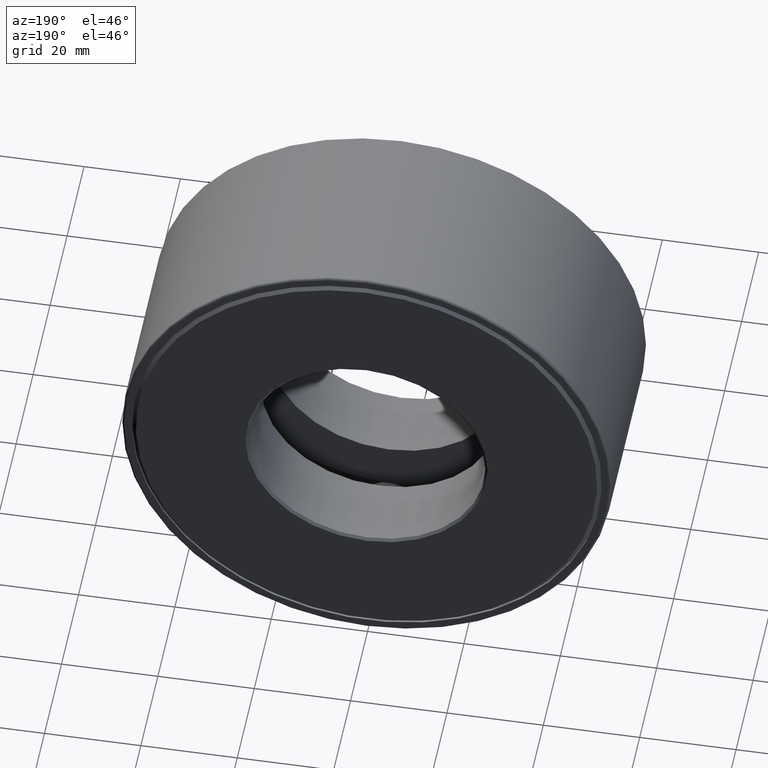
[diagram: clean part render]
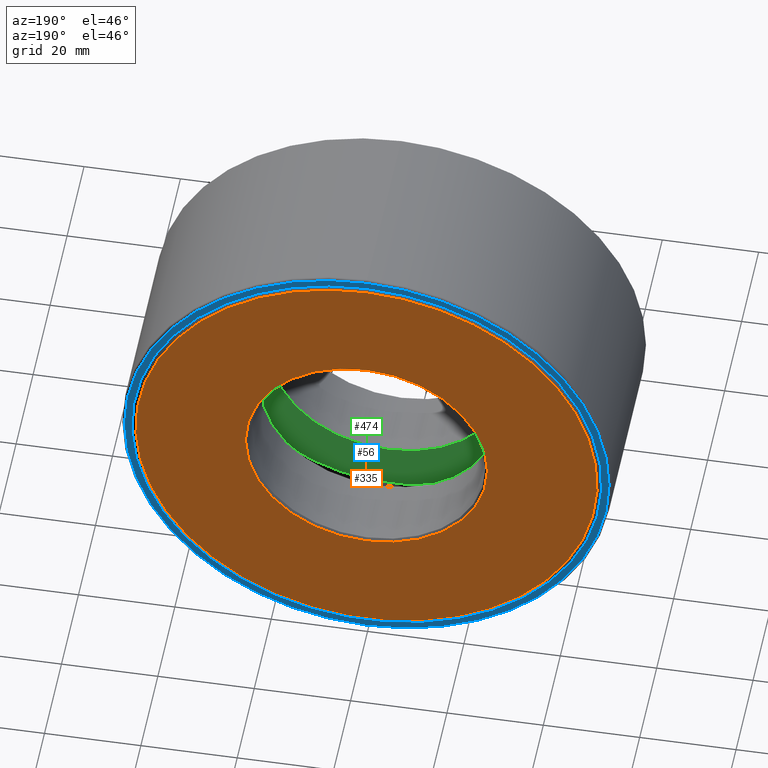
[diagram: same view with three faces highlighted in distinct colors, each labeled with its STEP entity id]
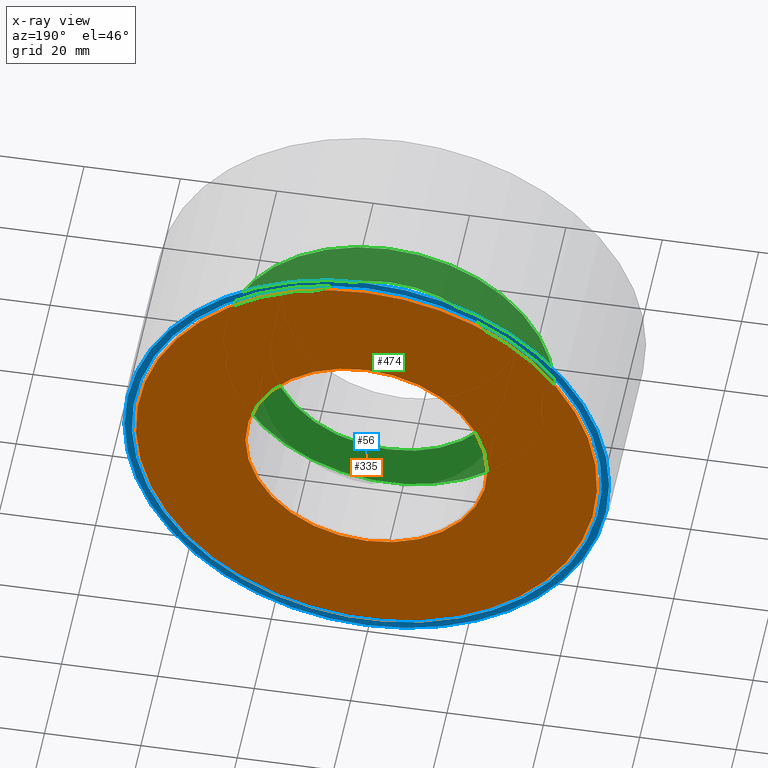
[diagram: x-ray of the same camera — body ghosted, the three highlighted faces saturated]
A machine part, auxiliary view with three faces highlighted in distinct colors.
The next image is the same camera in x-ray (body ghosted, the three faces saturated) — at least one of them is partly hidden behind the body in this view.
Their STEP definitions:

[orange] entity #335 — the highlighted planar face has unit normal (-0, 1, 0).
#21 = EDGE_LOOP ( 'NONE', ( #153 ) ) ;
#24 = FACE_OUTER_BOUND ( 'NONE', #21, .T. ) ;
#32 = EDGE_CURVE ( 'NONE', #66, #66, #40, .T. ) ;
#33 = EDGE_CURVE ( 'NONE', #286, #286, #171, .T. ) ;
#40 = CIRCLE ( 'NONE', #470, 1.884999999999999800 ) ;
#66 = VERTEX_POINT ( 'NONE', #544 ) ;
#153 = ORIENTED_EDGE ( 'NONE', *, *, #32, .T. ) ;
#171 = CIRCLE ( 'NONE', #568, 0.9887500000000003500 ) ;
#198 = DIRECTION ( 'NONE',  ( 0.0000000000000000000, 0.0000000000000000000, 1.000000000000000000 ) ) ;
#223 = CARTESIAN_POINT ( 'NONE',  ( 0.0000000000000000000, 1.624999999999999800, 0.0000000000000000000 ) ) ;
#239 = EDGE_LOOP ( 'NONE', ( #398 ) ) ;
#241 = AXIS2_PLACEMENT_3D ( 'NONE', #337, #430, #198 ) ;
#286 = VERTEX_POINT ( 'NONE', #558 ) ;
#309 = DIRECTION ( 'NONE',  ( 0.0000000000000000000, 0.0000000000000000000, 1.000000000000000000 ) ) ;
#313 = DIRECTION ( 'NONE',  ( -0.0000000000000000000, 1.000000000000000000, -0.0000000000000000000 ) ) ;
#329 = PLANE ( 'NONE',  #241 ) ;
#335 = ADVANCED_FACE ( 'NONE', ( #24, #421 ), #329, .T. ) ;
#337 = CARTESIAN_POINT ( 'NONE',  ( 0.0000000000000000000, 1.624999999999999800, 0.0000000000000000000 ) ) ;
#398 = ORIENTED_EDGE ( 'NONE', *, *, #33, .F. ) ;
#421 = FACE_BOUND ( 'NONE', #239, .T. ) ;
#430 = DIRECTION ( 'NONE',  ( -0.0000000000000000000, 1.000000000000000000, 0.0000000000000000000 ) ) ;
#470 = AXIS2_PLACEMENT_3D ( 'NONE', #606, #313, #504 ) ;
#504 = DIRECTION ( 'NONE',  ( 0.0000000000000000000, 0.0000000000000000000, 1.000000000000000000 ) ) ;
#544 = CARTESIAN_POINT ( 'NONE',  ( 0.0000000000000000000, 1.624999999999999800, 1.884999999999999800 ) ) ;
#555 = DIRECTION ( 'NONE',  ( -0.0000000000000000000, 1.000000000000000000, -0.0000000000000000000 ) ) ;
#558 = CARTESIAN_POINT ( 'NONE',  ( 0.0000000000000000000, 1.624999999999999800, 0.9887500000000003500 ) ) ;
#568 = AXIS2_PLACEMENT_3D ( 'NONE', #223, #555, #309 ) ;
#606 = CARTESIAN_POINT ( 'NONE',  ( 0.0000000000000000000, 1.624999999999999800, 0.0000000000000000000 ) ) ;

[blue] entity #56 — the highlighted planar face has unit normal (0, -1, 0).
#19 = DIRECTION ( 'NONE',  ( 0.0000000000000000000, 0.0000000000000000000, 1.000000000000000000 ) ) ;
#56 = ADVANCED_FACE ( 'NONE', ( #306, #119 ), #86, .F. ) ;
#61 = CIRCLE ( 'NONE', #400, 1.919999999999999900 ) ;
#86 = PLANE ( 'NONE',  #447 ) ;
#90 = ORIENTED_EDGE ( 'NONE', *, *, #92, .F. ) ;
#92 = EDGE_CURVE ( 'NONE', #356, #356, #61, .T. ) ;
#96 = CARTESIAN_POINT ( 'NONE',  ( 0.0000000000000000000, 1.609999999999999400, 1.919999999999999900 ) ) ;
#107 = CARTESIAN_POINT ( 'NONE',  ( 0.0000000000000000000, 1.609999999999999400, 0.0000000000000000000 ) ) ;
#119 = FACE_OUTER_BOUND ( 'NONE', #345, .T. ) ;
#129 = DIRECTION ( 'NONE',  ( 0.0000000000000000000, -0.0000000000000000000, -1.000000000000000000 ) ) ;
#151 = DIRECTION ( 'NONE',  ( -0.0000000000000000000, 1.000000000000000000, -0.0000000000000000000 ) ) ;
#190 = EDGE_LOOP ( 'NONE', ( #90 ) ) ;
#193 = AXIS2_PLACEMENT_3D ( 'NONE', #107, #151, #19 ) ;
#213 = VERTEX_POINT ( 'NONE', #417 ) ;
#222 = CIRCLE ( 'NONE', #193, 1.980000000000000000 ) ;
#299 = EDGE_CURVE ( 'NONE', #213, #213, #222, .T. ) ;
#306 = FACE_BOUND ( 'NONE', #190, .T. ) ;
#320 = DIRECTION ( 'NONE',  ( 0.0000000000000000000, 0.0000000000000000000, 1.000000000000000000 ) ) ;
#345 = EDGE_LOOP ( 'NONE', ( #605 ) ) ;
#356 = VERTEX_POINT ( 'NONE', #96 ) ;
#362 = CARTESIAN_POINT ( 'NONE',  ( 0.0000000000000000000, 1.609999999999999400, 0.0000000000000000000 ) ) ;
#400 = AXIS2_PLACEMENT_3D ( 'NONE', #422, #462, #320 ) ;
#405 = DIRECTION ( 'NONE',  ( 0.0000000000000000000, -1.000000000000000000, 0.0000000000000000000 ) ) ;
#417 = CARTESIAN_POINT ( 'NONE',  ( 0.0000000000000000000, 1.609999999999999400, 1.980000000000000000 ) ) ;
#422 = CARTESIAN_POINT ( 'NONE',  ( 0.0000000000000000000, 1.609999999999999400, 0.0000000000000000000 ) ) ;
#447 = AXIS2_PLACEMENT_3D ( 'NONE', #362, #405, #129 ) ;
#462 = DIRECTION ( 'NONE',  ( -0.0000000000000000000, 1.000000000000000000, -0.0000000000000000000 ) ) ;
#605 = ORIENTED_EDGE ( 'NONE', *, *, #299, .T. ) ;

[green] entity #474 — the highlighted planar face has unit normal (0, -1, 0).
#29 = DIRECTION ( 'NONE',  ( 0.0000000000000000000, -1.000000000000000000, 0.0000000000000000000 ) ) ;
#60 = EDGE_CURVE ( 'NONE', #547, #547, #494, .T. ) ;
#139 = CARTESIAN_POINT ( 'NONE',  ( 0.0000000000000000000, 0.6062499999999996200, 1.352250000000000400 ) ) ;
#166 = CARTESIAN_POINT ( 'NONE',  ( -4.318599338093769600E-016, 0.6062499999999997300, 0.0000000000000000000 ) ) ;
#199 = EDGE_CURVE ( 'NONE', #301, #301, #207, .T. ) ;
#204 = AXIS2_PLACEMENT_3D ( 'NONE', #166, #29, #214 ) ;
#207 = CIRCLE ( 'NONE', #484, 1.352250000000000400 ) ;
#214 = DIRECTION ( 'NONE',  ( 0.0000000000000000000, -0.0000000000000000000, -1.000000000000000000 ) ) ;
#242 = EDGE_LOOP ( 'NONE', ( #427 ) ) ;
#249 = FACE_OUTER_BOUND ( 'NONE', #242, .T. ) ;
#265 = CARTESIAN_POINT ( 'NONE',  ( 0.0000000000000000000, 0.6062499999999999600, 0.0000000000000000000 ) ) ;
#301 = VERTEX_POINT ( 'NONE', #139 ) ;
#317 = DIRECTION ( 'NONE',  ( -0.0000000000000000000, 1.000000000000000000, -0.0000000000000000000 ) ) ;
#372 = FACE_BOUND ( 'NONE', #480, .T. ) ;
#374 = CARTESIAN_POINT ( 'NONE',  ( 0.0000000000000000000, 0.6062499999999996200, 0.0000000000000000000 ) ) ;
#396 = PLANE ( 'NONE',  #204 ) ;
#409 = DIRECTION ( 'NONE',  ( 0.0000000000000000000, 0.0000000000000000000, 1.000000000000000000 ) ) ;
#410 = AXIS2_PLACEMENT_3D ( 'NONE', #265, #500, #409 ) ;
#418 = ORIENTED_EDGE ( 'NONE', *, *, #60, .F. ) ;
#427 = ORIENTED_EDGE ( 'NONE', *, *, #199, .T. ) ;
#474 = ADVANCED_FACE ( 'NONE', ( #372, #249 ), #396, .F. ) ;
#480 = EDGE_LOOP ( 'NONE', ( #418 ) ) ;
#484 = AXIS2_PLACEMENT_3D ( 'NONE', #374, #317, #560 ) ;
#494 = CIRCLE ( 'NONE', #410, 0.9687500000000001100 ) ;
#500 = DIRECTION ( 'NONE',  ( -0.0000000000000000000, 1.000000000000000000, -0.0000000000000000000 ) ) ;
#502 = CARTESIAN_POINT ( 'NONE',  ( 0.0000000000000000000, 0.6062499999999999600, 0.9687500000000001100 ) ) ;
#547 = VERTEX_POINT ( 'NONE', #502 ) ;
#560 = DIRECTION ( 'NONE',  ( 0.0000000000000000000, 0.0000000000000000000, 1.000000000000000000 ) ) ;